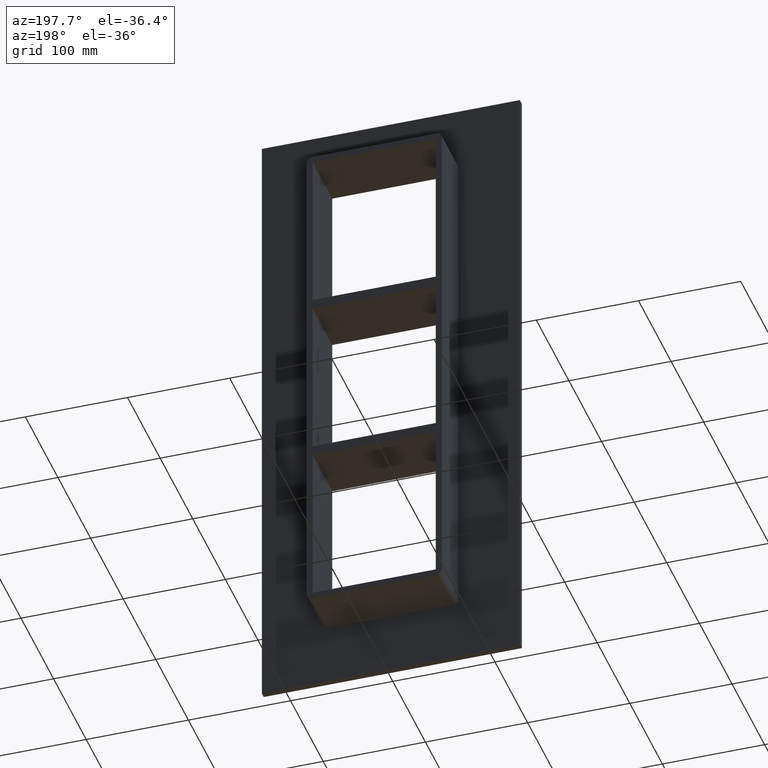
[diagram: clean part render]
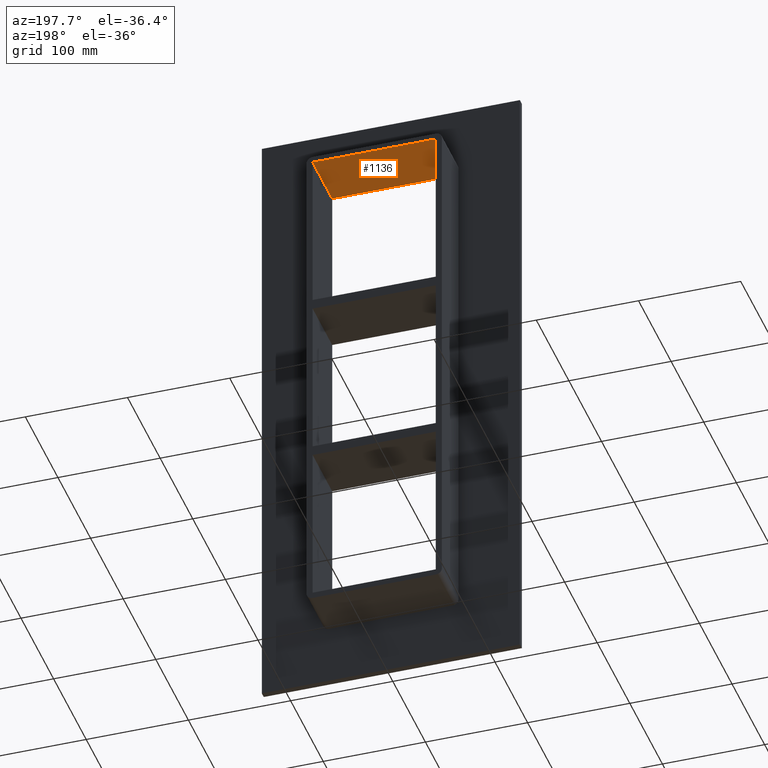
[diagram: same view with one face highlighted and labeled with its STEP entity id]
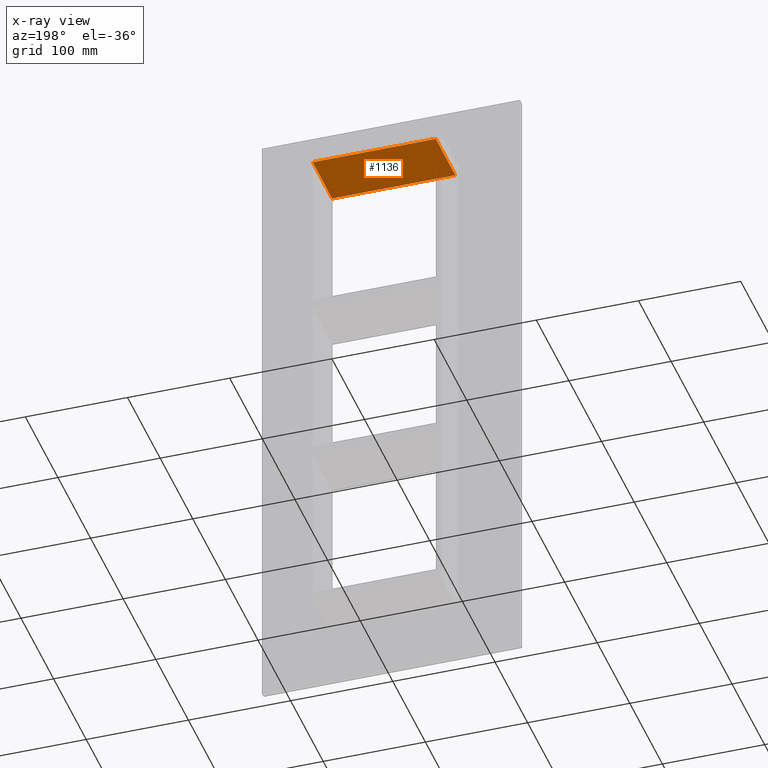
[diagram: x-ray of the same camera — body ghosted, the highlighted face saturated]
A machine part, auxiliary view. The second image highlights one B-rep face of the part: STEP entity #1136.
The next image is the same camera in x-ray: the body ghosted, the highlighted face saturated — about 1% of this face is hidden behind the body in this view.
In plain terms, the highlighted planar face has unit normal (0, 0, 1).
Its self-contained STEP definition (entity closure, byte-faithful):
#154=CARTESIAN_POINT('',(-60.25,57.0,249.25000000000006));
#155=VERTEX_POINT('',#154);
#162=CARTESIAN_POINT('',(-60.25,-3.0,249.25000000000006));
#163=VERTEX_POINT('',#162);
#164=CARTESIAN_POINT('',(-60.249999999999993,-3.0,249.25000000000006));
#165=DIRECTION('',(0.0,1.0,0.0));
#166=VECTOR('',#165,60.0);
#167=LINE('',#164,#166);
#168=EDGE_CURVE('',#163,#155,#167,.T.);
#216=CARTESIAN_POINT('',(60.25,-3.0,249.25000000000006));
#217=VERTEX_POINT('',#216);
#224=CARTESIAN_POINT('',(60.25,57.0,249.25000000000006));
#225=VERTEX_POINT('',#224);
#226=CARTESIAN_POINT('',(60.25,-3.0,249.25000000000006));
#227=DIRECTION('',(0.0,1.0,0.0));
#228=VECTOR('',#227,60.0);
#229=LINE('',#226,#228);
#230=EDGE_CURVE('',#217,#225,#229,.T.);
#1001=CARTESIAN_POINT('',(-60.25,-3.0,249.25000000000006));
#1002=DIRECTION('',(1.0,0.0,0.0));
#1003=VECTOR('',#1002,120.5);
#1004=LINE('',#1001,#1003);
#1005=EDGE_CURVE('',#163,#217,#1004,.T.);
#1120=CARTESIAN_POINT('',(-60.249999999999993,0.0,249.25000000000006));
#1121=DIRECTION('',(0.0,0.0,1.0));
#1122=DIRECTION('',(1.0,0.0,0.0));
#1123=AXIS2_PLACEMENT_3D('',#1120,#1121,#1122);
#1124=PLANE('',#1123);
#1125=ORIENTED_EDGE('',*,*,#168,.T.);
#1126=CARTESIAN_POINT('',(60.25,57.0,249.25000000000006));
#1127=DIRECTION('',(-1.0,0.0,0.0));
#1128=VECTOR('',#1127,120.5);
#1129=LINE('',#1126,#1128);
#1130=EDGE_CURVE('',#225,#155,#1129,.T.);
#1131=ORIENTED_EDGE('',*,*,#1130,.F.);
#1132=ORIENTED_EDGE('',*,*,#230,.F.);
#1133=ORIENTED_EDGE('',*,*,#1005,.F.);
#1134=EDGE_LOOP('',(#1125,#1131,#1132,#1133));
#1135=FACE_OUTER_BOUND('',#1134,.T.);
#1136=ADVANCED_FACE('',(#1135),#1124,.F.);